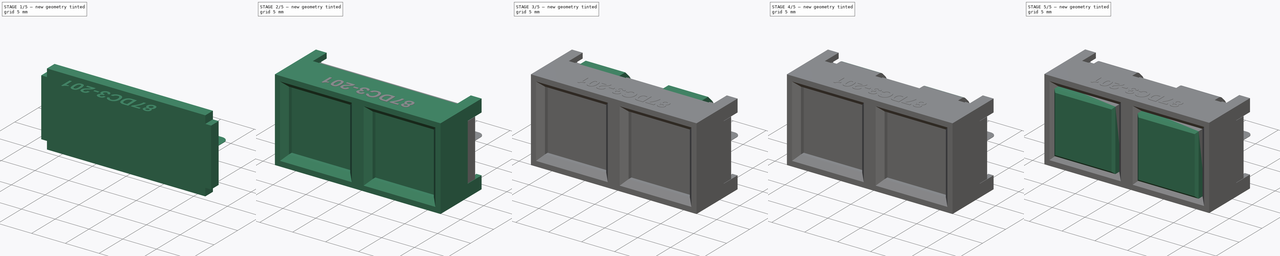
[diagram: build sequence overview — one tinted view per stage of 5, left to right]
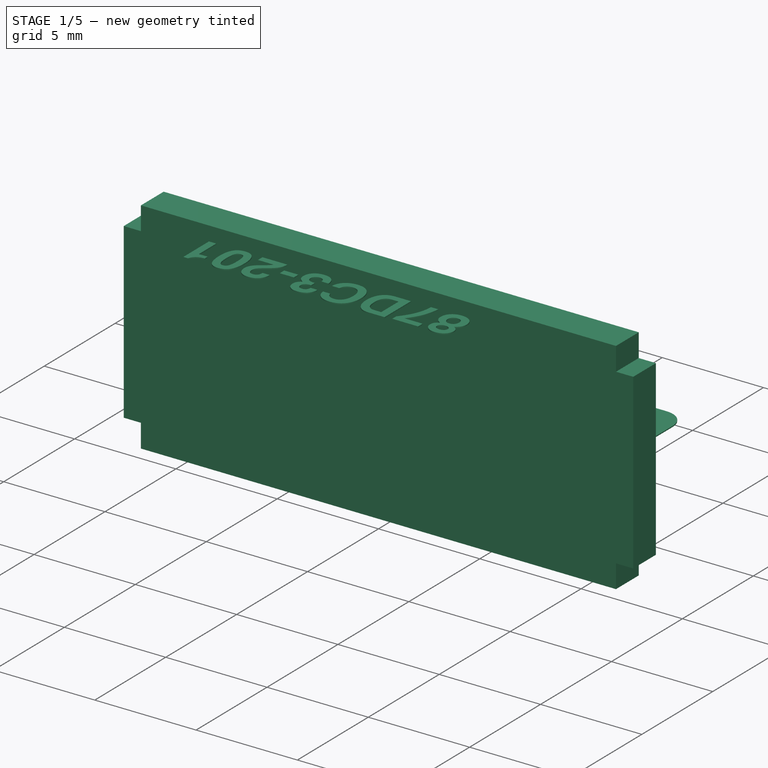
[diagram: stage 1 of 5 — iso view after this stage's code; geometry added in this stage tinted green]
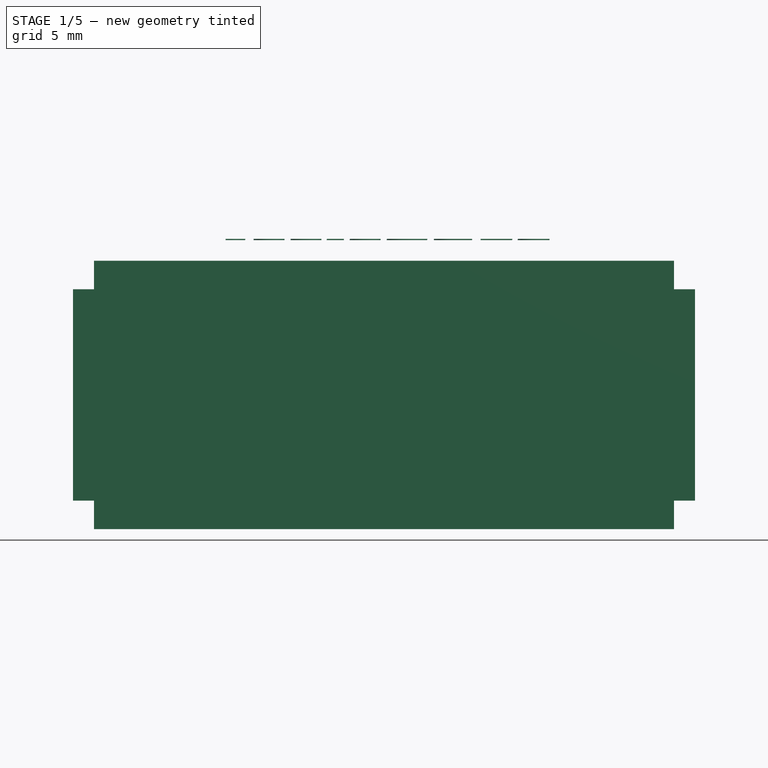
[diagram: stage 1 of 5 — front view after this stage's code; geometry added in this stage tinted green]
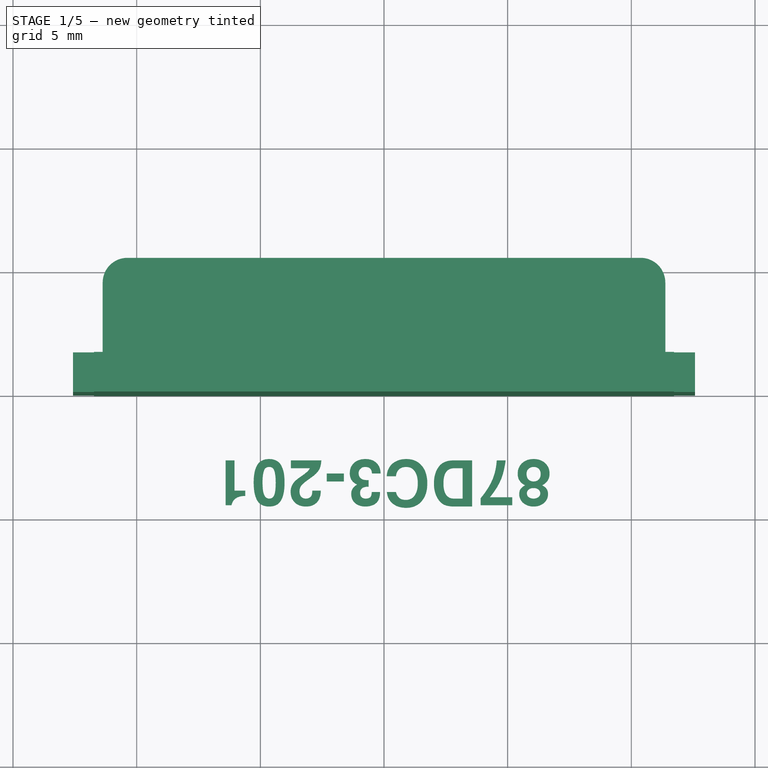
[diagram: stage 1 of 5 — top view after this stage's code; geometry added in this stage tinted green]
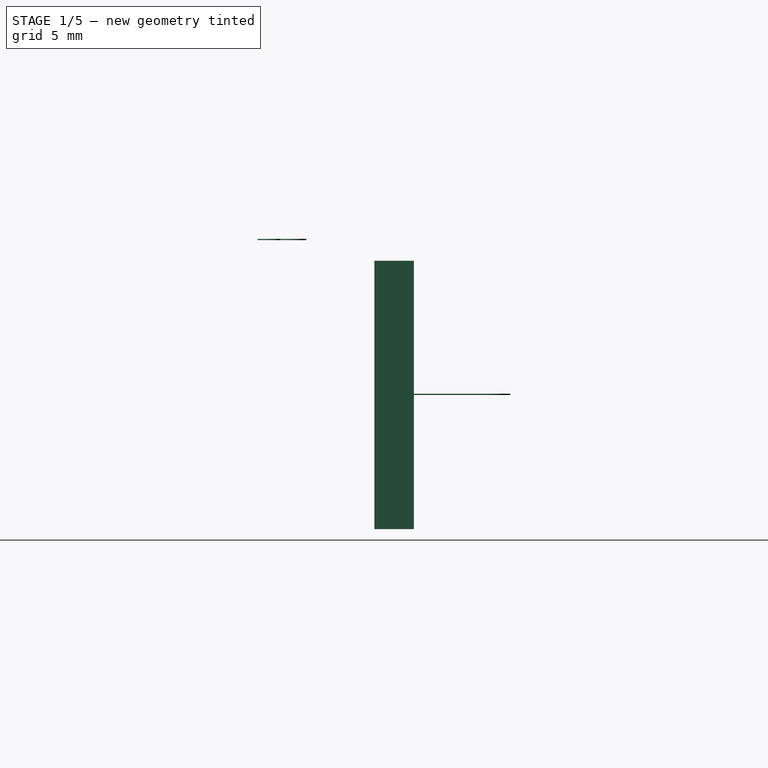
[diagram: stage 1 of 5 — right view after this stage's code; geometry added in this stage tinted green]
FCSTD DOCUMENT  (FreeCAD 0.18.4R)
Label: 87-DC3-201
License: All rights reserved
LicenseURL: http://en.wikipedia.org/wiki/All_rights_reserved
objects: Sketcher::SketchObject×12, PartDesign::Pad×8, PartDesign::Body×5, PartDesign::Pocket×4, PartDesign::Chamfer×4, PartDesign::Fillet×3, Part::Feature×3, PartDesign::Plane×2, App::MeasureDistance×2, Part::Part2DObjectPython×1, Part::Extrusion×1, PartDesign::FeatureBase×1, App::Part×1
note: 56 computed .brp shape members not serialized (recipe doc carries the construction recipe); baked Part::Feature solids carry a one-line shape summary decoded from their .brp

FEATURE [PartDesign::Body] Body  label="87DC3-201Body"
  Group = -> [Sketch,Pad,Sketch001,Pocket,Chamfer,DatumPlane,Sketch006,Pad003,Sketch007,Pad004,Sketch008,Pad005,Fillet,Chamfer003,Fillet001,Fillet002,Sketch009,Pocket001,Sketch010,Pocket002,DatumPlane001,Sketch011,Pocket003]
  Origin = -> Origin
  Tip = -> Pocket003
FEATURE [Sketcher::SketchObject] Sketch012
  MapMode = 5
  Placement = pos=(0,0,0) rot=(1,0,0;1.5708rad)
  Support = -> [XZ_Plane003]
  sketch-geometry (12):
    g0: LineSegment StartX=-11.725 StartY=5.425 StartZ=0 EndX=11.725 EndY=5.425 EndZ=0
    g1: LineSegment StartX=11.725 StartY=5.425 StartZ=0 EndX=11.725 EndY=4.275 EndZ=0
    g2: LineSegment StartX=11.725 StartY=4.275 StartZ=0 EndX=12.575 EndY=4.275 EndZ=0
    g3: LineSegment StartX=12.575 StartY=4.275 StartZ=0 EndX=12.575 EndY=-4.275 EndZ=0
    g4: LineSegment StartX=12.575 StartY=-4.275 StartZ=0 EndX=11.725 EndY=-4.275 EndZ=0
    g5: LineSegment StartX=11.725 StartY=-4.275 StartZ=0 EndX=11.725 EndY=-5.425 EndZ=0
    g6: LineSegment StartX=11.725 StartY=-5.425 StartZ=0 EndX=-11.725 EndY=-5.425 EndZ=0
    g7: LineSegment StartX=-11.725 StartY=-5.425 StartZ=0 EndX=-11.725 EndY=-4.275 EndZ=0
    g8: LineSegment StartX=-11.725 StartY=-4.275 StartZ=0 EndX=-12.575 EndY=-4.275 EndZ=0
    g9: LineSegment StartX=-12.575 StartY=-4.275 StartZ=0 EndX=-12.575 EndY=4.275 EndZ=0
    g10: LineSegment StartX=-12.575 StartY=4.275 StartZ=0 EndX=-11.725 EndY=4.275 EndZ=0
    g11: LineSegment StartX=-11.725 StartY=4.275 StartZ=0 EndX=-11.725 EndY=5.425 EndZ=0
  constraints (34):
    c: Horizontal(g0)
    c: Coincident(g0,g1)
    c: Vertical(g1)
    c: Coincident(g1,g2)
    c: Horizontal(g2)
    c: Coincident(g2,g3)
    c: Vertical(g3)
    c: Coincident(g3,g4)
    c: Horizontal(g4)
    c: Coincident(g4,g5)
    c: Vertical(g5)
    c: Coincident(g5,g6)
    c: Coincident(g6,g7)
    c: Vertical(g7)
    c: Coincident(g7,g8)
    c: Horizontal(g8)
    c: Coincident(g8,g9)
    c: Coincident(g9,g10)
    c: Coincident(g10,g11)
    c: Coincident(g11,g0)
    c: Equal(g11,g1)
    c: Equal(g1,g5)
    c: Equal(g5,g7)
    c: Equal(g2,g4)
    c: Equal(g4,g8)
    c: Equal(g8,g10)
    c: Equal(g3,g9)
    c: Equal(g0,g6)
    c: DistanceX(g9,g2) = 25.15
    c: DistanceY(g5,g0) = 10.85
    c: DistanceX(g10,g10) = 0.85
    c: DistanceY(g11,g11) = 1.15
    c: Symmetric(g6,g6,g-2)
    c: Symmetric(g9,g9,g-1)
FEATURE [PartDesign::Pad] Pad006  label="PCBPad"
  Length = 1.6
  Length2 = 100
  Placement = pos=(0,0,0) rot=(1,0,0;1.5708rad)
  Profile = -> Sketch012
  Reversed = true
  Type = 0
FEATURE [PartDesign::Body] Body003  label="PCBBody"
  Group = -> [Sketch012,Pad006]
  Origin = -> Origin003
  Tip = -> Pad006
FEATURE [Part::Feature] Part__Feature  label="COMMON-Brass_pin-5.75mm"
  Placement = pos=(20.32,0,0) rot=(0,0,1;0rad)
  shape: bbox 0.7 x 5.75 x 0.7 mm, 14 faces (baked)
FEATURE [Part::Feature] Part__Feature001  label="BTN_A-Brass_pin-5.75mm"
  Placement = pos=(12.7,0,0) rot=(0,0,1;0rad)
  shape: bbox 0.7 x 5.75 x 0.7 mm, 14 faces (baked)
FEATURE [Part::Feature] Part__Feature002  label="BTN_B-Brass_pin-5.75mm"
  shape: bbox 0.7 x 5.75 x 0.7 mm, 14 faces (baked)
FEATURE [Sketcher::SketchObject] Sketch016
  MapMode = 5
  Support = -> [XY_Plane004]
  sketch-geometry (8):
    g0: LineSegment StartX=-10.375 StartY=5.5 StartZ=0 EndX=10.375 EndY=5.5 EndZ=0
    g1: LineSegment StartX=11.375 StartY=4.5 StartZ=0 EndX=11.375 EndY=1 EndZ=0
    g2: LineSegment StartX=10.375 StartY=0 StartZ=0 EndX=-10.375 EndY=0 EndZ=0
    g3: LineSegment StartX=-11.375 StartY=1 StartZ=0 EndX=-11.375 EndY=4.5 EndZ=0
    g4: ArcOfCircle CenterX=-10.375 CenterY=4.5 CenterZ=0 NormalX=0 NormalY=0 NormalZ=1 AngleXU=0 Radius=1 StartAngle=1.5708 EndAngle=3.14159
    g5: ArcOfCircle CenterX=10.375 CenterY=4.5 CenterZ=0 NormalX=0 NormalY=0 NormalZ=1 AngleXU=0 Radius=1 StartAngle=0 EndAngle=1.5708
    g6: ArcOfCircle CenterX=10.375 CenterY=1 CenterZ=0 NormalX=0 NormalY=0 NormalZ=1 AngleXU=0 Radius=1 StartAngle=4.71239 EndAngle=6.28319
    g7: ArcOfCircle CenterX=-10.375 CenterY=1 CenterZ=0 NormalX=0 NormalY=0 NormalZ=1 AngleXU=0 Radius=1 StartAngle=3.14159 EndAngle=4.71239
  constraints (19):
    c: Horizontal(g2)
    c: Vertical(g1)
    c: Vertical(g3)
    c: Tangent(g3,g4) = 1.5708
    c: Tangent(g0,g4) = 1.5708
    c: Tangent(g0,g5) = 1.5708
    c: Tangent(g1,g5) = 1.5708
    c: Tangent(g1,g6) = 1.5708
    c: Tangent(g2,g6) = 1.5708
    c: Tangent(g2,g7) = 1.5708
    c: Tangent(g3,g7) = 1.5708
    c: Radius(g4) = 1
    c: Equal(g5,g6)
    c: Equal(g6,g7)
    c: Equal(g7,g4)
    c: Symmetric(g0,g0,g-2)
    c: PointOnObject(g-1,g2)
    c: DistanceY(g-1,g0) = 5.5
    c: DistanceX(g3,g1) = 22.75
FEATURE [PartDesign::Pad] Pad007  label="LabelPad"
  Length = 0.05
  Length2 = 100
  Profile = -> Sketch016
  Type = 0
FEATURE [Part::Part2DObjectPython] ShapeString  label="LabelTextShapeString"  # Draft 2D object (typed FeaturePython)
  AttachmentOffset = pos=(-6.75,2.8,0.01) rot=(0,0,1;0rad)
  FontFile = <path>
  MapMode = 5
  Placement = pos=(-6.75,2.8,0.06) rot=(0,0,1;0rad)
  Size = 1
  String = 87DC3-201
  Support = -> [Pad007]
  Tracking = 0.05
FEATURE [Part::Extrusion] Extrude  label="LabelTextExtrude"
  Base = -> ShapeString
  Dir = (0,0,1)
  DirMode = 2
  FaceMakerClass = Part::FaceMakerBullseye
  LengthFwd = 0.05
  LengthRev = 0
  Placement = pos=(0,0,6.2) rot=(0,0,1;3.14159rad)
  Solid = true
  Symmetric = false
FEATURE [PartDesign::FeatureBase] BaseFeature
  BaseFeature = -> Pad007
FEATURE [PartDesign::Body] Body004  label="LabelBody"
  BaseFeature = -> Pad007
  Group = -> [BaseFeature]
  Origin = -> Origin004
  Placement = pos=(0,0,6.2) rot=(0,0,1;3.14159rad)
  Tip = -> BaseFeature
FEATURE [App::Part] Part  label="Grayhill_87DC3-201"
  Group = -> [Body,Body001,Body002,Body003,Part__Feature,Part__Feature001,Part__Feature002,Body004,Pad007,Sketch016,ShapeString,Extrude]
  Origin = -> Origin005
FEATURE [App::MeasureDistance] Distance  label="Distance: 5,88 mm"
  Distance = 5.8823
  P1 = (-12.575,-5.9,6.225)
  P2 = (-12.575,-0.0177024,6.225)
FEATURE [App::MeasureDistance] Distance001  label="Distance: 1,60 mm"
  Distance = 1.60002
  P1 = (-12.575,5.06506e-07,-4.24888)
  P2 = (-12.575,1.6,-4.2407)
note: 1 file-system path scrubbed to <path> (originals preserved in the JSON sidecar)
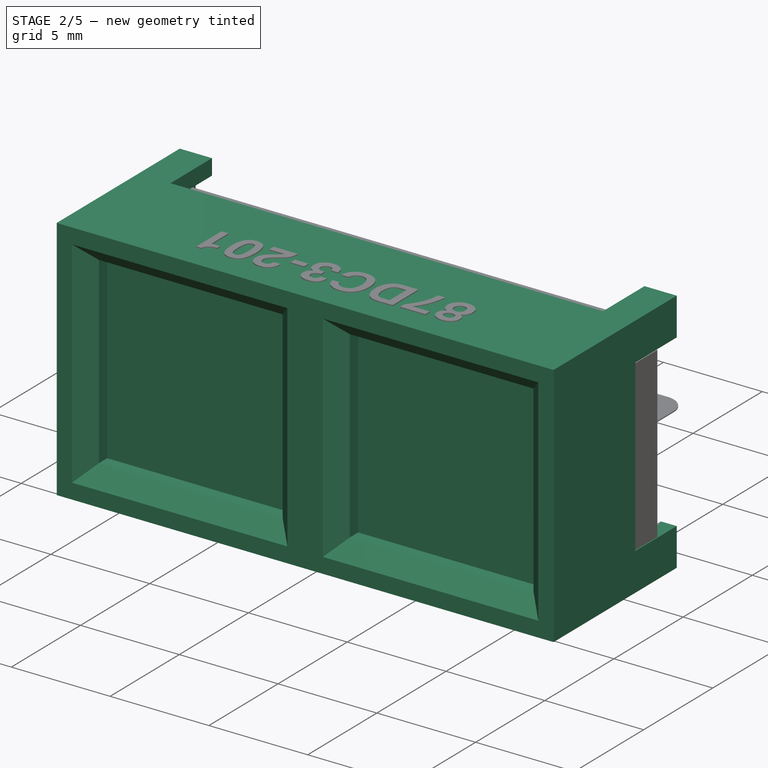
[diagram: stage 2 of 5 — iso view after this stage's code; geometry added in this stage tinted green]
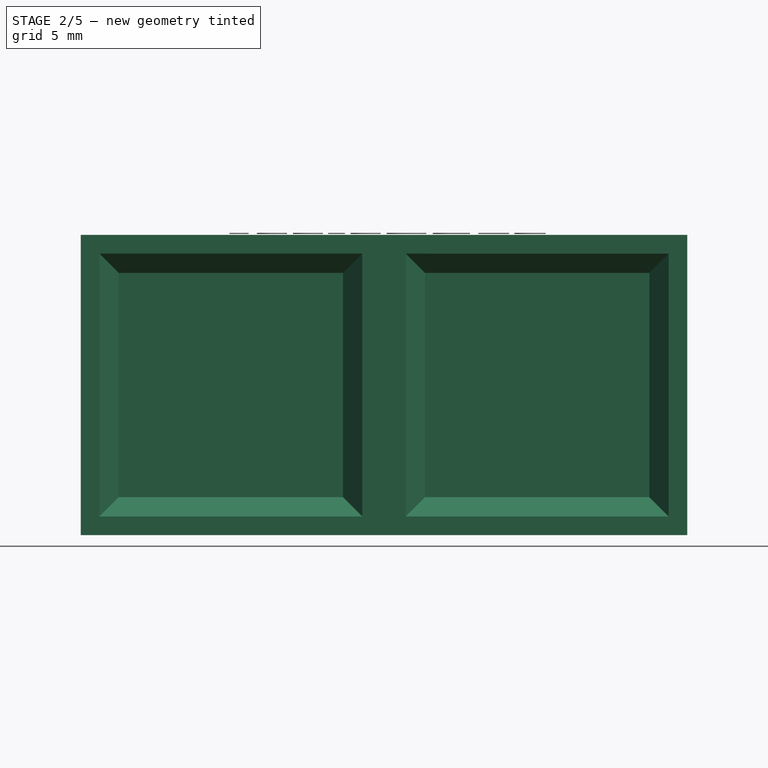
[diagram: stage 2 of 5 — front view after this stage's code; geometry added in this stage tinted green]
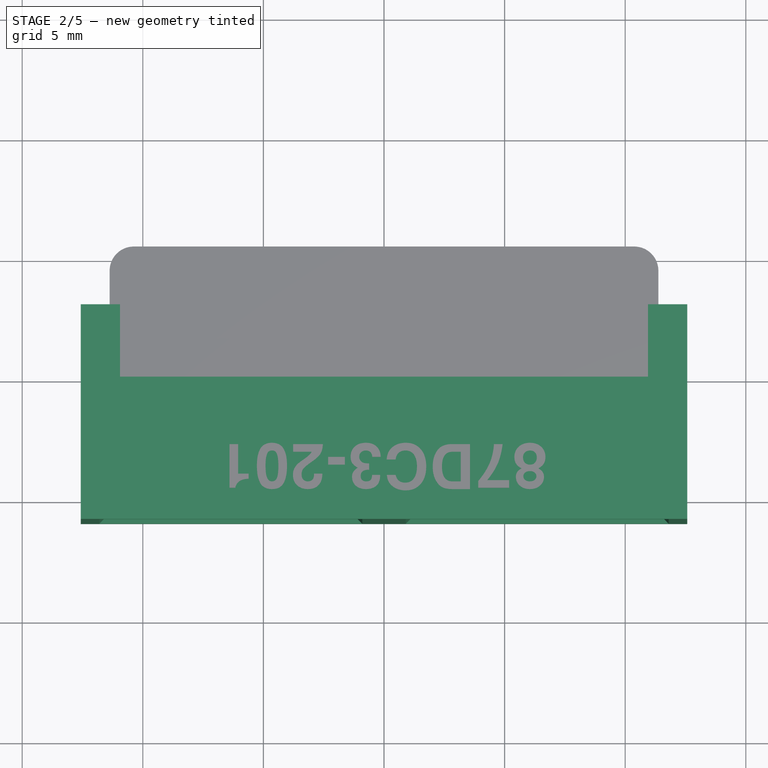
[diagram: stage 2 of 5 — top view after this stage's code; geometry added in this stage tinted green]
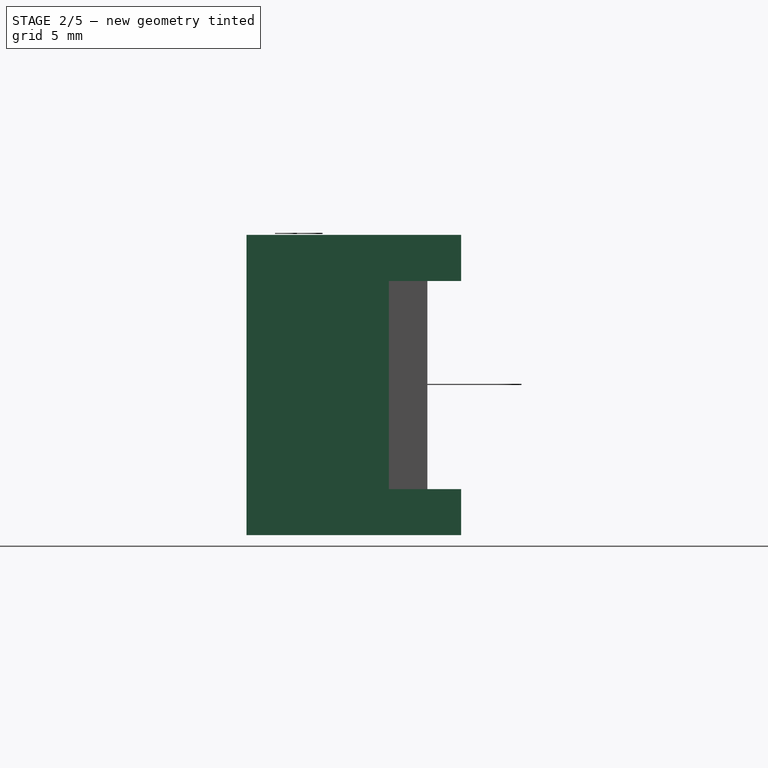
[diagram: stage 2 of 5 — right view after this stage's code; geometry added in this stage tinted green]
FEATURE [Sketcher::SketchObject] Sketch
  MapMode = 5
  Placement = pos=(0,0,0) rot=(1,0,0;1.5708rad)
  Support = -> [XZ_Plane]
  sketch-geometry (4):
    g0: LineSegment StartX=-12.575 StartY=6.225 StartZ=0 EndX=12.575 EndY=6.225 EndZ=0
    g1: LineSegment StartX=12.575 StartY=6.225 StartZ=0 EndX=12.575 EndY=-6.225 EndZ=0
    g2: LineSegment StartX=12.575 StartY=-6.225 StartZ=0 EndX=-12.575 EndY=-6.225 EndZ=0
    g3: LineSegment StartX=-12.575 StartY=-6.225 StartZ=0 EndX=-12.575 EndY=6.225 EndZ=0
  constraints (10):
    c: Coincident(g0,g1)
    c: Coincident(g1,g2)
    c: Coincident(g2,g3)
    c: Coincident(g3,g0)
    c: Horizontal(g2)
    c: Vertical(g1)
    c: DistanceX(g0,g0) = 25.15
    c: DistanceY(g3,g3) = 12.45
    c: Symmetric(g0,g0,g-2)
    c: Symmetric(g2,g0,g-1)
FEATURE [PartDesign::Pad] Pad
  Length = 5.9
  Length2 = 100
  Placement = pos=(0,0,0) rot=(1,0,0;1.5708rad)
  Profile = -> Sketch
  Type = 0
FEATURE [Sketcher::SketchObject] Sketch001
  MapMode = 5
  Placement = pos=(0,-5.9,1.3e-15) rot=(1,0,0;1.5708rad)
  Support = -> [Pad]
  sketch-geometry (11):
    g0: LineSegment StartX=-11 StartY=4.65 StartZ=0 EndX=-1.7 EndY=4.65 EndZ=0
    g1: LineSegment StartX=-1.7 StartY=4.65 StartZ=0 EndX=-1.7 EndY=-4.65 EndZ=0
    g2: LineSegment StartX=-1.7 StartY=-4.65 StartZ=0 EndX=-11 EndY=-4.65 EndZ=0
    g3: LineSegment StartX=-11 StartY=-4.65 StartZ=0 EndX=-11 EndY=4.65 EndZ=0
    g4: LineSegment [constr] StartX=-6.35 StartY=4.65 StartZ=0 EndX=-6.35 EndY=-4.65 EndZ=0
    g5: LineSegment StartX=1.7 StartY=4.65 StartZ=0 EndX=11 EndY=4.65 EndZ=0
    g6: LineSegment StartX=11 StartY=4.65 StartZ=0 EndX=11 EndY=-4.65 EndZ=0
    g7: LineSegment StartX=11 StartY=-4.65 StartZ=0 EndX=1.7 EndY=-4.65 EndZ=0
    g8: LineSegment StartX=1.7 StartY=-4.65 StartZ=0 EndX=1.7 EndY=4.65 EndZ=0
    g9: LineSegment [constr] StartX=6.35 StartY=4.65 StartZ=0 EndX=6.35 EndY=-4.65 EndZ=0
    g10: LineSegment [constr] StartX=-11 StartY=4.65 StartZ=0 EndX=1.7 EndY=4.65 EndZ=0
  constraints (31):
    c: Coincident(g0,g1)
    c: Coincident(g1,g2)
    c: Coincident(g2,g3)
    c: Coincident(g3,g0)
    c: Horizontal(g0)
    c: Horizontal(g2)
    c: Vertical(g1)
    c: DistanceY(g3,g3) = 9.3
    c: DistanceX(g0,g0) = 9.3
    c: Symmetric(g0,g2,g-1)
    c: PointOnObject(g4,g0)
    c: PointOnObject(g4,g2)
    c: Symmetric(g0,g0,g4)
    c: DistanceX(g4,g-1) = 6.35
    c: Coincident(g5,g6)
    c: Coincident(g6,g7)
    c: Coincident(g7,g8)
    c: Coincident(g8,g5)
    c: Horizontal(g5)
    c: Horizontal(g7)
    c: Vertical(g6)
    c: Equal(g3,g8) = 9.3
    c: Equal(g0,g5) = 9.3
    c: PointOnObject(g9,g5)
    c: PointOnObject(g9,g7)
    c: Symmetric(g5,g5,g9)
    c: Coincident(g0,g10)
    c: Coincident(g5,g10)
    c: Distance(g10) = 12.7
    c: Horizontal(g10)
    c: Vertical(g8)
FEATURE [PartDesign::Pocket] Pocket
  BaseFeature = -> Pad
  Length = 1.4
  Length2 = 100
  Placement = pos=(0,0,0) rot=(1,0,0;1.5708rad)
  Profile = -> Sketch001
  Type = 0
FEATURE [PartDesign::Chamfer] Chamfer
  Base = -> Pocket [Edge17,Edge20,Edge19,Edge18,Edge16,Edge13,Edge14,Edge15]
  BaseFeature = -> Pocket
  Placement = pos=(0,0,0) rot=(1,0,0;1.5708rad)
  Size = 0.8
FEATURE [PartDesign::Body] Body002  label="ButtonRightBody"
  Group = -> [Sketch004,Pad002,Chamfer002]
  Origin = -> Origin002
  Tip = -> Chamfer002
FEATURE [Sketcher::SketchObject] Sketch006
  ExternalGeometry = -> [Chamfer]
  MapMode = 5
  Placement = pos=(0,0,0) rot=(-1,0,0;1.5708rad)
  Support = -> [Chamfer]
  sketch-geometry (24):
    g0: LineSegment StartX=12.575 StartY=-4.315 StartZ=0 EndX=12.575 EndY=-6.225 EndZ=0
    g1: LineSegment StartX=12.575 StartY=-6.225 StartZ=0 EndX=10.945 EndY=-6.225 EndZ=0
    g2: LineSegment StartX=10.945 StartY=-6.225 StartZ=0 EndX=10.945 EndY=-5.425 EndZ=0
    g3: LineSegment StartX=10.945 StartY=-5.425 StartZ=0 EndX=11.775 EndY=-5.425 EndZ=0
    g4: LineSegment StartX=11.775 StartY=-5.425 StartZ=0 EndX=11.775 EndY=-4.315 EndZ=0
    g5: LineSegment StartX=11.775 StartY=-4.315 StartZ=0 EndX=12.575 EndY=-4.315 EndZ=0
    g6: LineSegment StartX=-10.945 StartY=-6.225 StartZ=0 EndX=-12.575 EndY=-6.225 EndZ=0
    g7: LineSegment StartX=-12.575 StartY=-6.225 StartZ=0 EndX=-12.575 EndY=-4.315 EndZ=0
    g8: LineSegment StartX=-12.575 StartY=-4.315 StartZ=0 EndX=-11.775 EndY=-4.315 EndZ=0
    g9: LineSegment StartX=-11.775 StartY=-4.315 StartZ=0 EndX=-11.775 EndY=-5.425 EndZ=0
    g10: LineSegment StartX=-11.775 StartY=-5.425 StartZ=0 EndX=-10.945 EndY=-5.425 EndZ=0
    g11: LineSegment StartX=-10.945 StartY=-5.425 StartZ=0 EndX=-10.945 EndY=-6.225 EndZ=0
    g12: LineSegment StartX=12.575 StartY=4.315 StartZ=0 EndX=12.575 EndY=6.225 EndZ=0
    g13: LineSegment StartX=12.575 StartY=6.225 StartZ=0 EndX=10.945 EndY=6.225 EndZ=0
    g14: LineSegment StartX=10.945 StartY=6.225 StartZ=0 EndX=10.945 EndY=5.425 EndZ=0
    g15: LineSegment StartX=10.945 StartY=5.425 StartZ=0 EndX=11.775 EndY=5.425 EndZ=0
    g16: LineSegment StartX=11.775 StartY=5.425 StartZ=0 EndX=11.775 EndY=4.315 EndZ=0
    g17: LineSegment StartX=11.775 StartY=4.315 StartZ=0 EndX=12.575 EndY=4.315 EndZ=0
    g18: LineSegment StartX=-11.775 StartY=4.315 StartZ=0 EndX=-11.775 EndY=5.425 EndZ=0
    g19: LineSegment StartX=-11.775 StartY=5.425 StartZ=0 EndX=-10.945 EndY=5.425 EndZ=0
    g20: LineSegment StartX=-10.945 StartY=5.425 StartZ=0 EndX=-10.945 EndY=6.225 EndZ=0
    g21: LineSegment StartX=-10.945 StartY=6.225 StartZ=0 EndX=-12.575 EndY=6.225 EndZ=0
    g22: LineSegment StartX=-12.575 StartY=6.225 StartZ=0 EndX=-12.575 EndY=4.315 EndZ=0
    g23: LineSegment StartX=-12.575 StartY=4.315 StartZ=0 EndX=-11.775 EndY=4.315 EndZ=0
  constraints (68):
    c: Vertical(g0)
    c: Coincident(g0,g1)
    c: Horizontal(g1)
    c: Coincident(g1,g2)
    c: Vertical(g2)
    c: Coincident(g2,g3)
    c: Horizontal(g3)
    c: Coincident(g3,g4)
    c: Vertical(g4)
    c: Coincident(g4,g5)
    c: Coincident(g5,g0)
    c: Horizontal(g5)
    c: DistanceX(g1,g1) = 1.63
    c: DistanceY(g0,g0) = 1.91
    c: DistanceY(g2,g2) = 0.8
    c: DistanceX(g5,g5) = 0.8
    c: Horizontal(g6)
    c: Coincident(g6,g7)
    c: Vertical(g7)
    c: Coincident(g7,g8)
    c: Horizontal(g8)
    c: Coincident(g8,g9)
    c: Vertical(g9)
    c: Coincident(g9,g10)
    c: Horizontal(g10)
    c: Coincident(g10,g11)
    c: Coincident(g11,g6)
    c: Vertical(g11)
    c: Equal(g6,g1)
    c: Equal(g7,g0)
    c: Equal(g8,g5)
    c: Equal(g11,g2)
    c: Vertical(g12)
    c: Coincident(g12,g13)
    c: Horizontal(g13)
    c: Coincident(g13,g14)
    c: Vertical(g14)
    c: Coincident(g14,g15)
    c: Horizontal(g15)
    c: Coincident(g15,g16)
    c: Vertical(g16)
    c: Coincident(g16,g17)
    c: Horizontal(g17)
    c: Vertical(g18)
    c: Coincident(g18,g19)
    c: Horizontal(g19)
    c: Coincident(g19,g20)
    c: Vertical(g20)
    c: Coincident(g20,g21)
    c: Horizontal(g21)
    c: Coincident(g21,g22)
    c: Vertical(g22)
    c: Coincident(g22,g23)
    c: Coincident(g23,g18)
    c: Horizontal(g23)
    c: Equal(g23,g8)
    c: Equal(g17,g5)
    c: Equal(g14,g20)
    c: Equal(g14,g2)
    c: Equal(g12,g22)
    c: Equal(g21,g13)
    c: Equal(g12,g0)
    c: Equal(g13,g1)
    c: Coincident(g-3,g0)
    c: Coincident(g-4,g6)
    c: Coincident(g-5,g12)
    c: Coincident(g-6,g21)
    c: Coincident(g17,g12)
FEATURE [PartDesign::Pad] Pad003
  BaseFeature = -> Chamfer
  Length = 3
  Length2 = 100
  Placement = pos=(0,0,0) rot=(1,0,0;1.5708rad)
  Profile = -> Sketch006
  Type = 0
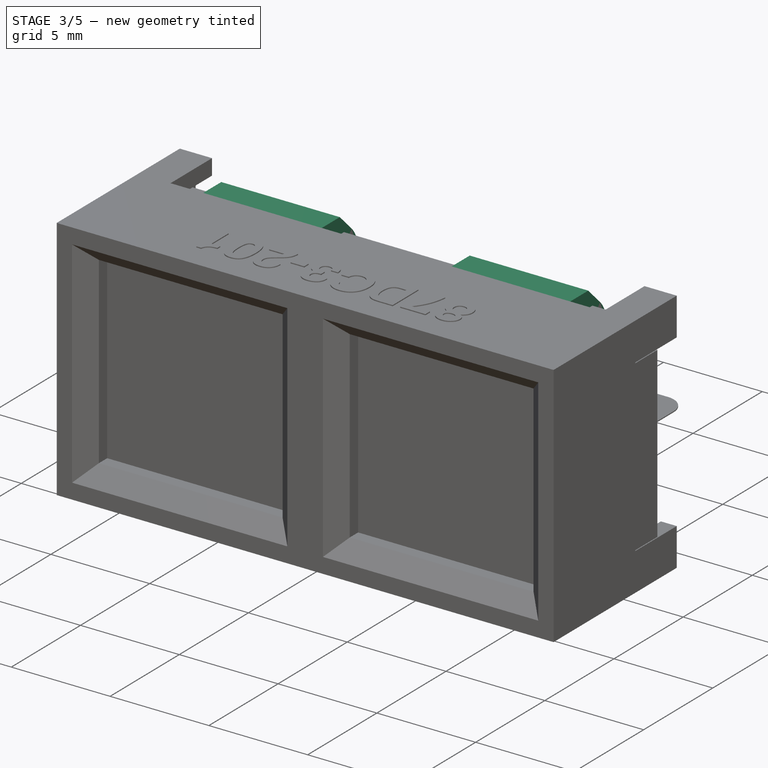
[diagram: stage 3 of 5 — iso view after this stage's code; geometry added in this stage tinted green]
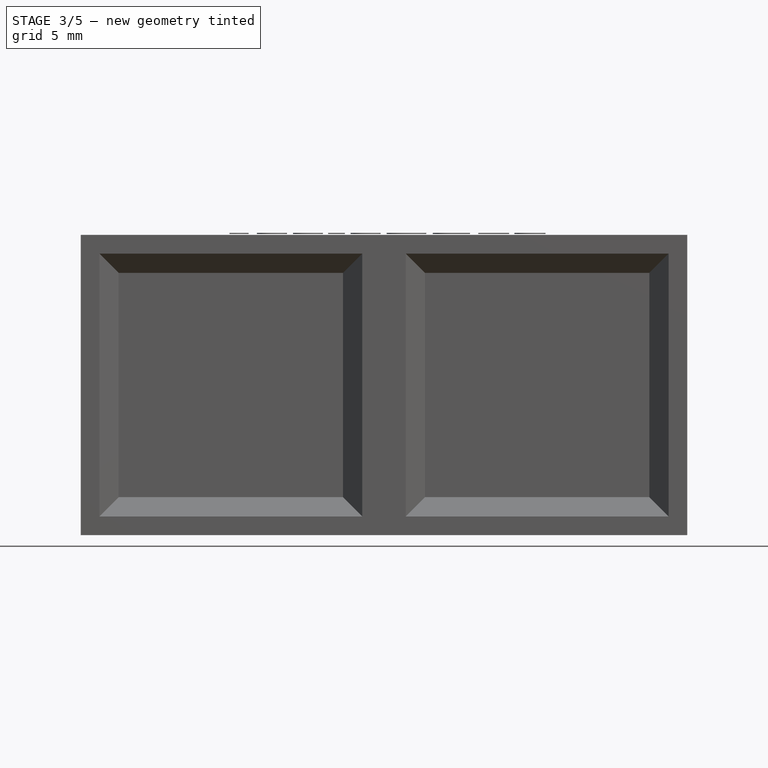
[diagram: stage 3 of 5 — front view after this stage's code; geometry added in this stage tinted green]
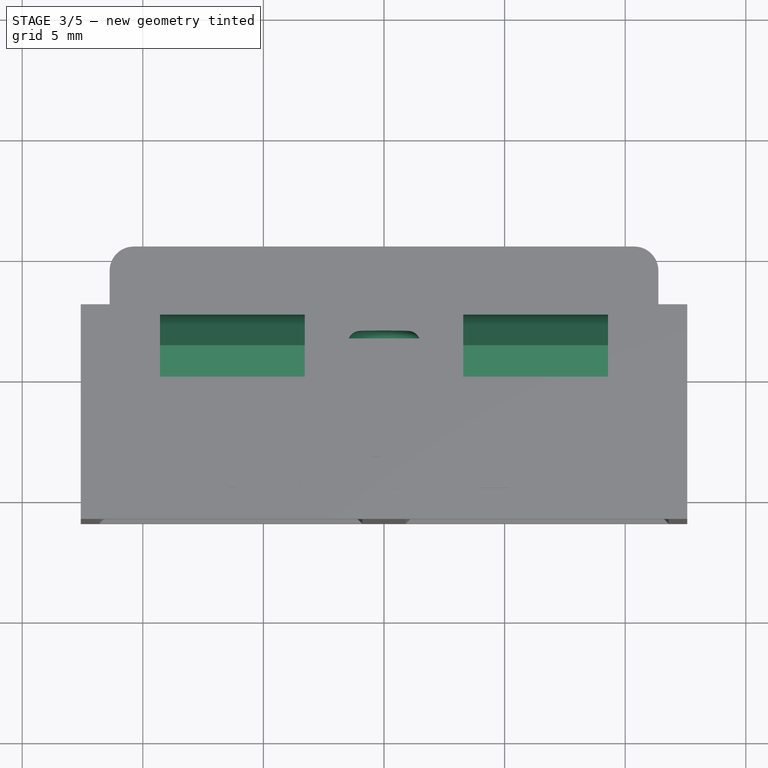
[diagram: stage 3 of 5 — top view after this stage's code; geometry added in this stage tinted green]
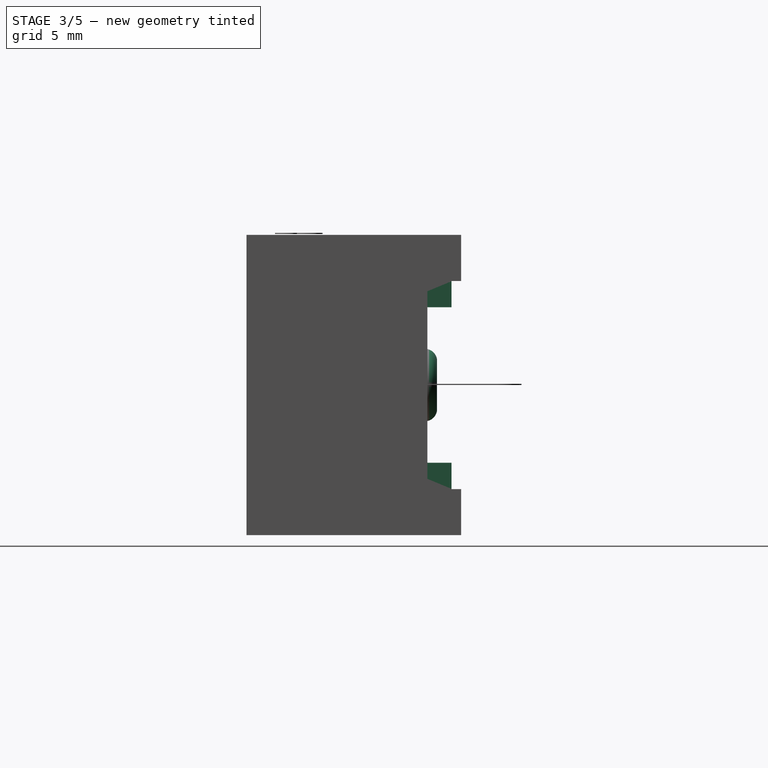
[diagram: stage 3 of 5 — right view after this stage's code; geometry added in this stage tinted green]
FEATURE [Sketcher::SketchObject] Sketch007
  ExternalGeometry = -> [Chamfer]
  MapMode = 5
  Placement = pos=(0,0,0) rot=(-1,0,0;1.5708rad)
  Support = -> [Pad003]
  sketch-geometry (24):
    g0: LineSegment StartX=-9.2875 StartY=6.225 StartZ=0 EndX=-3.2875 EndY=6.225 EndZ=0
    g1: LineSegment StartX=-3.2875 StartY=6.225 StartZ=0 EndX=-3.2875 EndY=3.225 EndZ=0
    g2: LineSegment StartX=-3.2875 StartY=3.225 StartZ=0 EndX=-9.2875 EndY=3.225 EndZ=0
    g3: LineSegment StartX=-9.2875 StartY=3.225 StartZ=0 EndX=-9.2875 EndY=6.225 EndZ=0
    g4: LineSegment [constr] StartX=-12.575 StartY=6.225 StartZ=0 EndX=12.575 EndY=6.225 EndZ=0
    g5: LineSegment [constr] StartX=-12.575 StartY=-6.225 StartZ=0 EndX=12.575 EndY=-6.225 EndZ=0
    g6: GeomPoint X=1e-16 Y=6.225 Z=0
    g7: GeomPoint X=4e-16 Y=-6.225 Z=0
    g8: GeomPoint X=-6.2875 Y=-6.225 Z=0
    g9: GeomPoint X=6.2875 Y=-6.225 Z=0
    g10: GeomPoint X=-6.2875 Y=6.225 Z=0
    g11: GeomPoint X=6.2875 Y=6.225 Z=0
    g12: LineSegment StartX=3.2875 StartY=6.225 StartZ=0 EndX=9.2875 EndY=6.225 EndZ=0
    g13: LineSegment StartX=9.2875 StartY=6.225 StartZ=0 EndX=9.2875 EndY=3.225 EndZ=0
    g14: LineSegment StartX=9.2875 StartY=3.225 StartZ=0 EndX=3.2875 EndY=3.225 EndZ=0
    g15: LineSegment StartX=3.2875 StartY=3.225 StartZ=0 EndX=3.2875 EndY=6.225 EndZ=0
    g16: LineSegment StartX=-9.2875 StartY=-3.225 StartZ=0 EndX=-3.2875 EndY=-3.225 EndZ=0
    g17: LineSegment StartX=-3.2875 StartY=-3.225 StartZ=0 EndX=-3.2875 EndY=-6.225 EndZ=0
    g18: LineSegment StartX=-3.2875 StartY=-6.225 StartZ=0 EndX=-9.2875 EndY=-6.225 EndZ=0
    g19: LineSegment StartX=-9.2875 StartY=-6.225 StartZ=0 EndX=-9.2875 EndY=-3.225 EndZ=0
    g20: LineSegment StartX=3.2875 StartY=-3.225 StartZ=0 EndX=9.2875 EndY=-3.225 EndZ=0
    g21: LineSegment StartX=9.2875 StartY=-3.225 StartZ=0 EndX=9.2875 EndY=-6.225 EndZ=0
    g22: LineSegment StartX=9.2875 StartY=-6.225 StartZ=0 EndX=3.2875 EndY=-6.225 EndZ=0
    g23: LineSegment StartX=3.2875 StartY=-6.225 StartZ=0 EndX=3.2875 EndY=-3.225 EndZ=0
  constraints (54):
    c: Coincident(g0,g1)
    c: Coincident(g1,g2)
    c: Coincident(g2,g3)
    c: Coincident(g3,g0)
    c: Horizontal(g0)
    c: Horizontal(g2)
    c: Vertical(g1)
    c: Vertical(g3)
    c: DistanceX(g0,g0) = 6
    c: DistanceY(g1,g1) = 3
    c: Coincident(g4,g-3)
    c: Coincident(g4,g-4)
    c: Coincident(g5,g-6)
    c: Coincident(g5,g-5)
    c: Symmetric(g4,g4,g6)
    c: Symmetric(g5,g5,g7)
    c: Symmetric(g7,g5,g9)
    c: Symmetric(g5,g7,g8)
    c: Symmetric(g4,g6,g10)
    c: Symmetric(g6,g4,g11)
    c: Symmetric(g0,g0,g10)
    c: Coincident(g12,g13)
    c: Coincident(g13,g14)
    c: Coincident(g14,g15)
    c: Coincident(g15,g12)
    c: Horizontal(g12)
    c: Horizontal(g14)
    c: Vertical(g13)
    c: Vertical(g15)
    c: Coincident(g16,g17)
    c: Coincident(g17,g18)
    c: Coincident(g18,g19)
    c: Coincident(g19,g16)
    c: Horizontal(g16)
    c: Horizontal(g18)
    c: Vertical(g17)
    c: Vertical(g19)
    c: Coincident(g20,g21)
    c: Coincident(g21,g22)
    c: Coincident(g22,g23)
    c: Coincident(g23,g20)
    c: Horizontal(g20)
    c: Horizontal(g22)
    c: Vertical(g21)
    c: Vertical(g23)
    c: Equal(g12,g0)
    c: Equal(g20,g16)
    c: Equal(g16,g0)
    c: Equal(g17,g21)
    c: Equal(g21,g13)
    c: Equal(g13,g1)
    c: Symmetric(g18,g17,g8)
    c: Symmetric(g22,g21,g9)
    c: Symmetric(g12,g12,g11)
FEATURE [PartDesign::Pad] Pad004
  BaseFeature = -> Pad003
  Length = 2.6
  Length2 = 100
  Placement = pos=(0,0,0) rot=(1,0,0;1.5708rad)
  Profile = -> Sketch007
  Type = 0
FEATURE [Sketcher::SketchObject] Sketch008
  MapMode = 5
  Placement = pos=(0,0,0) rot=(-1,0,0;1.5708rad)
  Support = -> [Pad004]
  sketch-geometry (1):
    g0: Circle CenterX=0 CenterY=0 CenterZ=0 NormalX=0 NormalY=0 NormalZ=1 AngleXU=0 Radius=1.5
  constraints (2):
    c: Coincident(g0,g-1)
    c: Diameter(g0) = 3
FEATURE [PartDesign::Pad] Pad005
  BaseFeature = -> Pad004
  Length = 2
  Length2 = 100
  Placement = pos=(0,0,0) rot=(1,0,0;1.5708rad)
  Profile = -> Sketch008
  Type = 0
FEATURE [PartDesign::Fillet] Fillet
  Base = -> Pad005 [Edge179]
  BaseFeature = -> Pad005
  Placement = pos=(0,0,0) rot=(1,0,0;1.5708rad)
  Radius = 0.5
FEATURE [PartDesign::Chamfer] Chamfer003
  Base = -> Fillet [Edge146,Edge147,Edge130,Edge129]
  BaseFeature = -> Fillet
  Placement = pos=(0,0,0) rot=(1,0,0;1.5708rad)
  Size = 1.3
FEATURE [PartDesign::Fillet] Fillet001
  Base = -> Chamfer003 [Edge10,Edge151,Edge156,Edge158]
  BaseFeature = -> Chamfer003
  Placement = pos=(0,0,0) rot=(1,0,0;1.5708rad)
  Radius = 1.5
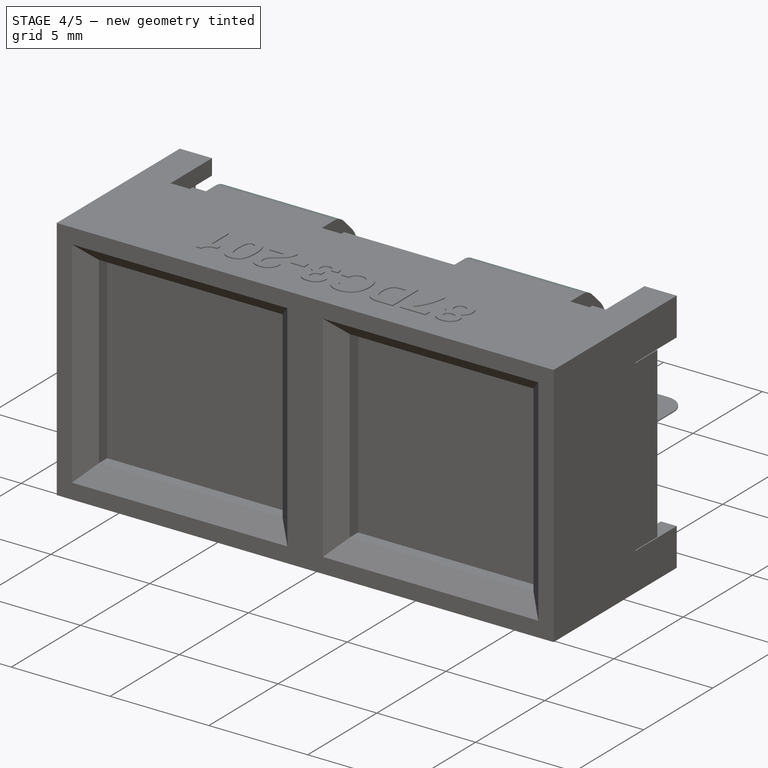
[diagram: stage 4 of 5 — iso view after this stage's code; geometry added in this stage tinted green]
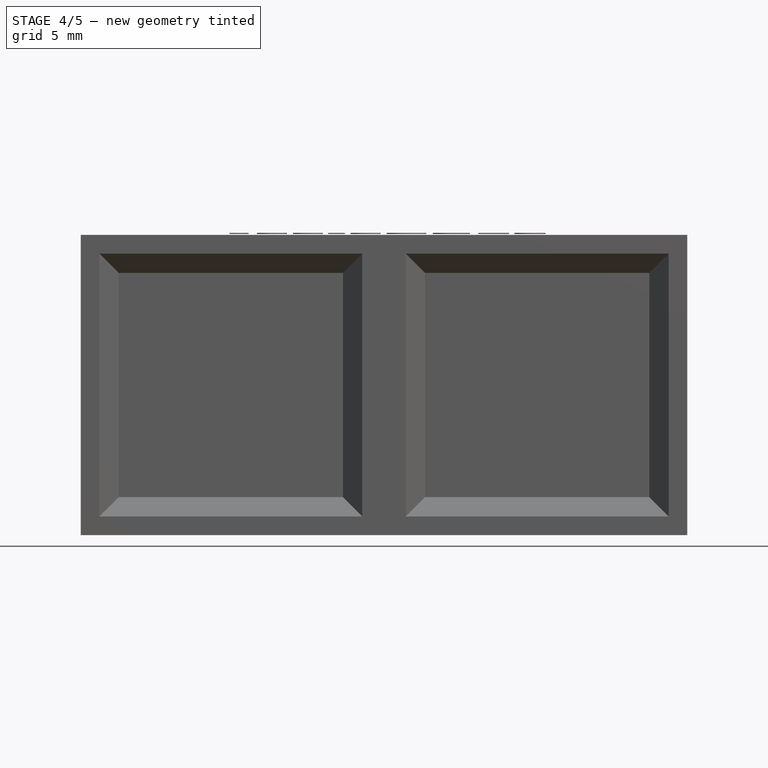
[diagram: stage 4 of 5 — front view after this stage's code; geometry added in this stage tinted green]
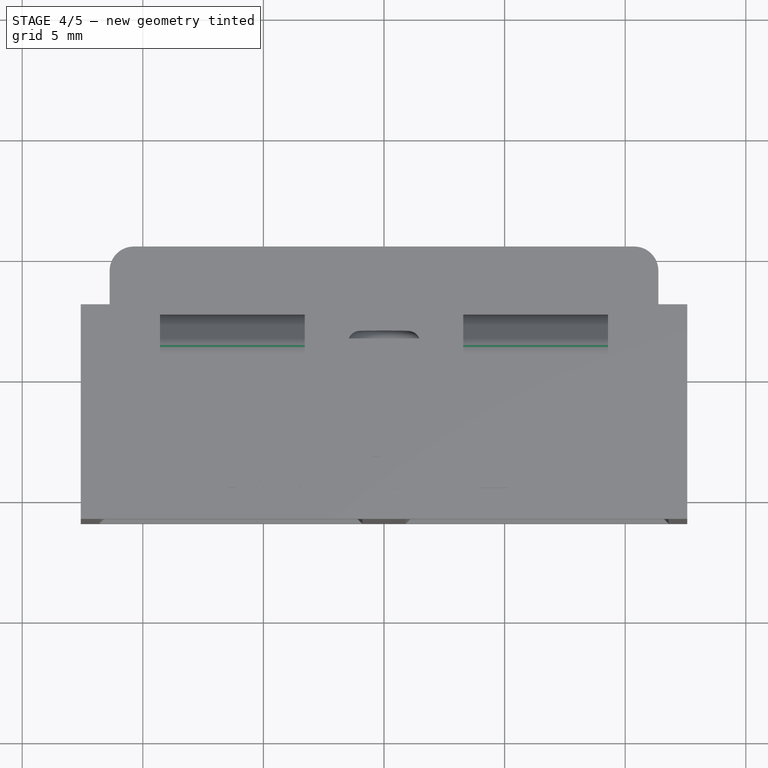
[diagram: stage 4 of 5 — top view after this stage's code; geometry added in this stage tinted green]
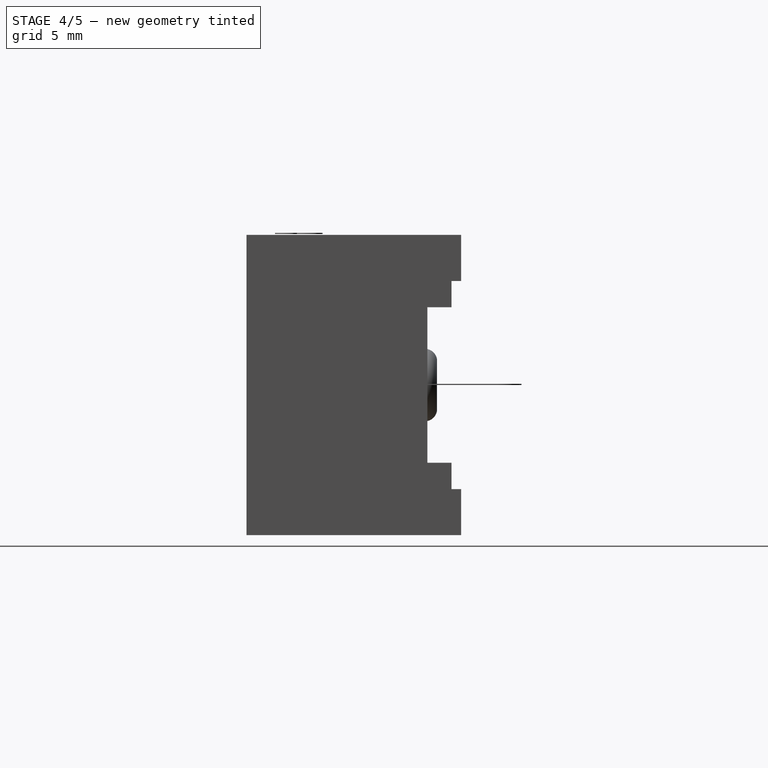
[diagram: stage 4 of 5 — right view after this stage's code; geometry added in this stage tinted green]
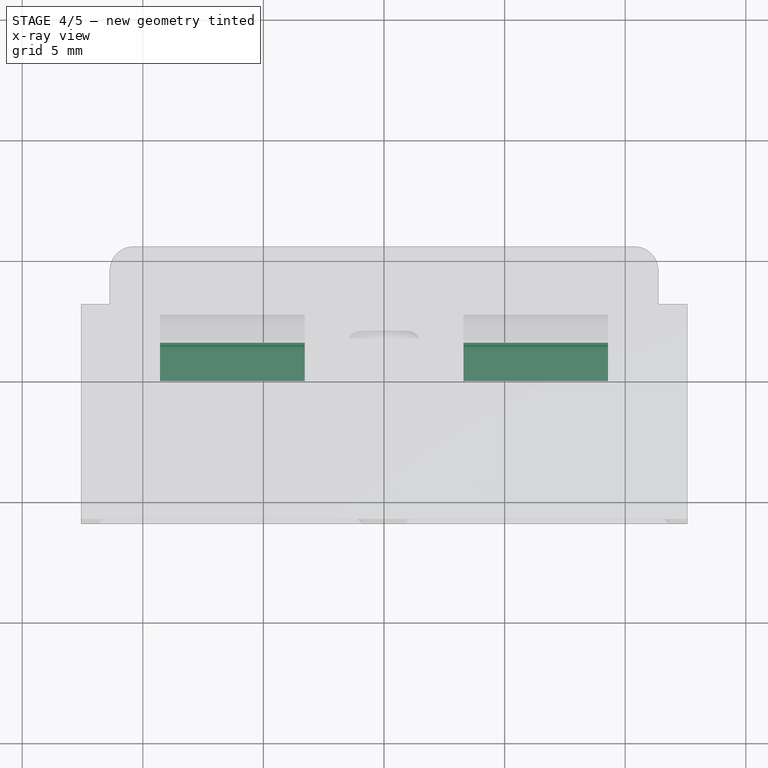
[diagram: stage 4 of 5 — x-ray composite at the top view; earlier geometry ghosted, this stage's added geometry solid]
FEATURE [PartDesign::Fillet] Fillet002
  Base = -> Fillet001 [Edge164,Edge165,Edge145,Edge9]
  BaseFeature = -> Fillet001
  Placement = pos=(0,0,0) rot=(1,0,0;1.5708rad)
  Radius = 1
FEATURE [Sketcher::SketchObject] Sketch009
  ExternalGeometry = -> [Fillet002]
  MapMode = 5
  Placement = pos=(0,5.2e-15,3.225) rot=(1,0,0;3.14159rad)
  Support = -> [Fillet002]
  sketch-geometry (4):
    g0: LineSegment StartX=-9.2875 StartY=2e-16 StartZ=0 EndX=-3.2875 EndY=2e-16 EndZ=0
    g1: LineSegment StartX=-3.2875 StartY=2e-16 StartZ=0 EndX=-3.2875 EndY=-1.6 EndZ=0
    g2: LineSegment StartX=-3.2875 StartY=-1.6 StartZ=0 EndX=-9.2875 EndY=-1.6 EndZ=0
    g3: LineSegment StartX=-9.2875 StartY=-1.6 StartZ=0 EndX=-9.2875 EndY=2e-16 EndZ=0
  constraints (10):
    c: Coincident(g0,g1)
    c: Coincident(g1,g2)
    c: Coincident(g2,g3)
    c: Coincident(g3,g0)
    c: Vertical(g1)
    c: Coincident(g0,g-3)
    c: DistanceY(g1,g1) = 1.6
    c: Equal(g3,g1)
    c: Equal(g2,g0)
    c: Coincident(g0,g-4)
FEATURE [PartDesign::Pocket] Pocket001
  BaseFeature = -> Fillet002
  Length = 1.8
  Length2 = 100
  Placement = pos=(0,0,0) rot=(1,0,0;1.5708rad)
  Profile = -> Sketch009
  Type = 0
FEATURE [Sketcher::SketchObject] Sketch010
  ExternalGeometry = -> [Pocket001]
  MapMode = 5
  Placement = pos=(0,5.2e-15,3.225) rot=(1,0,0;3.14159rad)
  Support = -> [Pocket001]
  sketch-geometry (4):
    g0: LineSegment StartX=3.2875 StartY=0 StartZ=0 EndX=9.2875 EndY=2e-16 EndZ=0
    g1: LineSegment StartX=9.2875 StartY=2e-16 StartZ=0 EndX=9.2875 EndY=-1.6 EndZ=0
    g2: LineSegment StartX=9.2875 StartY=-1.6 StartZ=0 EndX=3.2875 EndY=-1.6 EndZ=0
    g3: LineSegment StartX=3.2875 StartY=-1.6 StartZ=0 EndX=3.2875 EndY=0 EndZ=0
  constraints (10):
    c: Coincident(g0,g1)
    c: Coincident(g1,g2)
    c: Coincident(g2,g3)
    c: Coincident(g3,g0)
    c: Horizontal(g2)
    c: Vertical(g1)
    c: Vertical(g3)
    c: Coincident(g0,g-3)
    c: Coincident(g0,g-4)
    c: DistanceY(g1,g1) = 1.6
FEATURE [PartDesign::Pocket] Pocket002
  BaseFeature = -> Pocket001
  Length = 1.8
  Length2 = 100
  Placement = pos=(0,0,0) rot=(1,0,0;1.5708rad)
  Profile = -> Sketch010
  Type = 0
FEATURE [PartDesign::Plane] DatumPlane001
  Length = 24.4855
  MapMode = 45
  Placement = pos=(-1.37e-14,1.3,-3.225) rot=(0,0,1;1.5708rad)
  ResizeMode = 0
  Support = -> [Pocket002]
  Width = 29.6355
FEATURE [Sketcher::SketchObject] Sketch011
  ExternalGeometry = -> [Pocket002]
  MapMode = 5
  Placement = pos=(-1.37e-14,1.3,-3.225) rot=(0,0,1;1.5708rad)
  Support = -> [DatumPlane001]
  sketch-geometry (8):
    g0: LineSegment StartX=-1.3 StartY=9.2875 StartZ=0 EndX=0.3 EndY=9.2875 EndZ=0
    g1: LineSegment StartX=0.3 StartY=9.2875 StartZ=0 EndX=0.3 EndY=3.2875 EndZ=0
    g2: LineSegment StartX=0.3 StartY=3.2875 StartZ=0 EndX=-1.3 EndY=3.2875 EndZ=0
    g3: LineSegment StartX=-1.3 StartY=3.2875 StartZ=0 EndX=-1.3 EndY=9.2875 EndZ=0
    g4: LineSegment StartX=-1.3 StartY=-3.2875 StartZ=0 EndX=0.3 EndY=-3.2875 EndZ=0
    g5: LineSegment StartX=0.3 StartY=-3.2875 StartZ=0 EndX=0.3 EndY=-9.2875 EndZ=0
    g6: LineSegment StartX=0.3 StartY=-9.2875 StartZ=0 EndX=-1.3 EndY=-9.2875 EndZ=0
    g7: LineSegment StartX=-1.3 StartY=-9.2875 StartZ=0 EndX=-1.3 EndY=-3.2875 EndZ=0
  constraints (20):
    c: Coincident(g0,g1)
    c: Coincident(g1,g2)
    c: Coincident(g2,g3)
    c: Coincident(g3,g0)
    c: Horizontal(g0)
    c: Horizontal(g2)
    c: Vertical(g1)
    c: Coincident(g0,g-3)
    c: Coincident(g4,g5)
    c: Coincident(g5,g6)
    c: Coincident(g6,g7)
    c: Coincident(g7,g4)
    c: Horizontal(g4)
    c: Horizontal(g6)
    c: Vertical(g5)
    c: Coincident(g4,g-5)
    c: Coincident(g2,g-4)
    c: Coincident(g6,g-6)
    c: DistanceX(g4,g4) = 1.6
    c: Equal(g4,g2)
FEATURE [PartDesign::Pocket] Pocket003  label="BodyFinal_pad"
  BaseFeature = -> Pocket002
  Length = 1.8
  Length2 = 100
  Placement = pos=(0,0,0) rot=(1,0,0;1.5708rad)
  Profile = -> Sketch011
  Type = 0
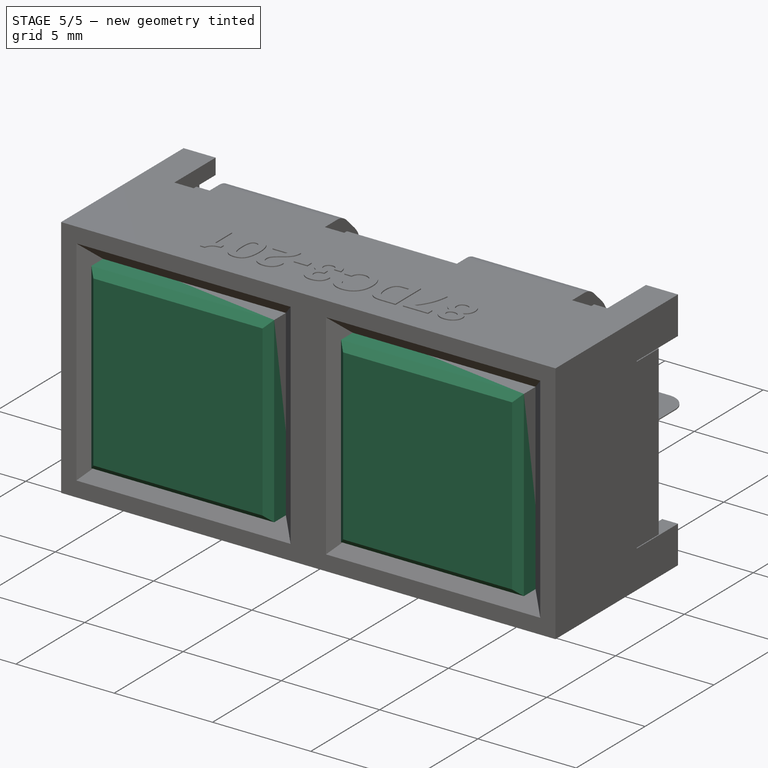
[diagram: stage 5 of 5 — iso view after this stage's code; geometry added in this stage tinted green]
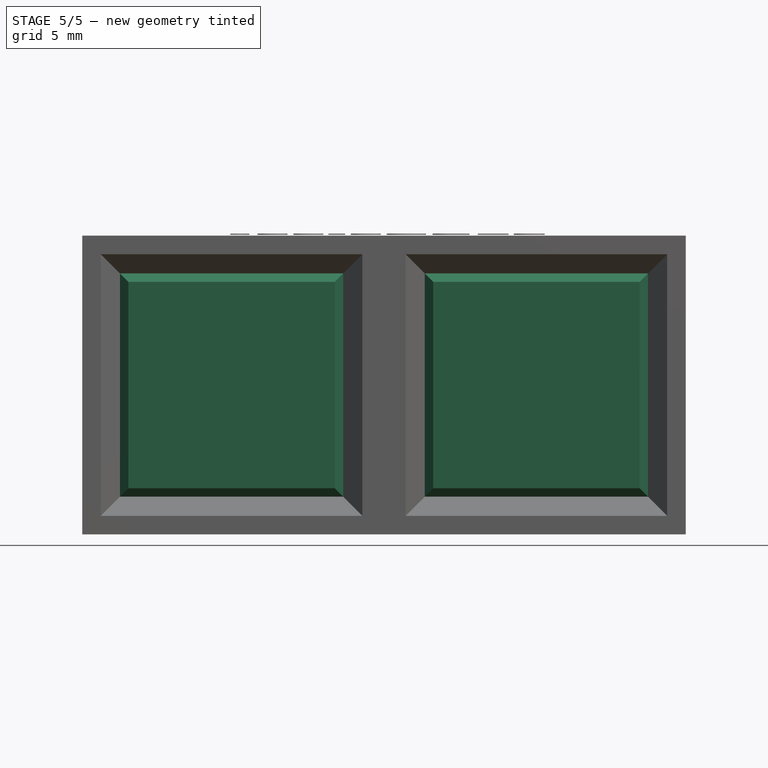
[diagram: stage 5 of 5 — front view after this stage's code; geometry added in this stage tinted green]
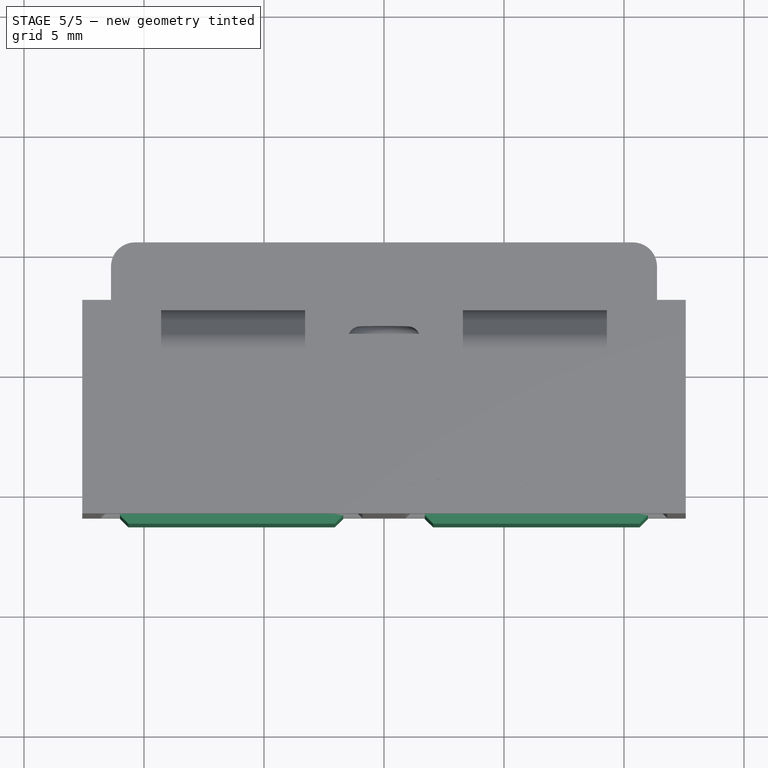
[diagram: stage 5 of 5 — top view after this stage's code; geometry added in this stage tinted green]
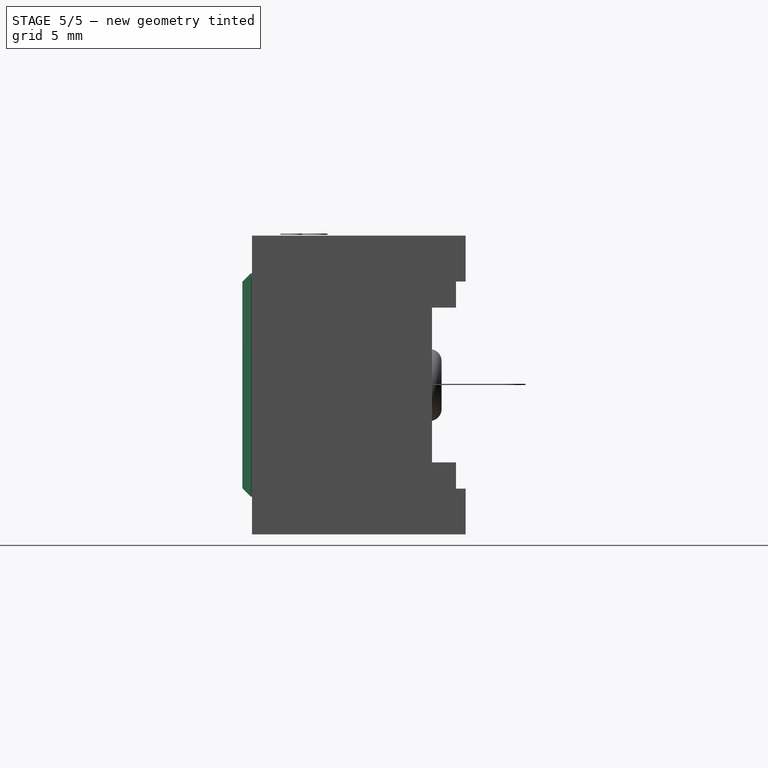
[diagram: stage 5 of 5 — right view after this stage's code; geometry added in this stage tinted green]
FEATURE [PartDesign::Plane] DatumPlane
  Length = 29.6355
  MapMode = 5
  Placement = pos=(0,-4.5,3.4e-15) rot=(1,0,0;1.5708rad)
  ResizeMode = 0
  Support = -> [Chamfer]
  Width = 24.4855
FEATURE [Sketcher::SketchObject] Sketch004  label="SketchRightBtn"
  MapMode = 5
  Placement = pos=(0,-4.5,3.4e-15) rot=(1,0,0;1.5708rad)
  Support = -> [DatumPlane]
  sketch-geometry (5):
    g0: LineSegment StartX=1.7 StartY=4.65 StartZ=0 EndX=11 EndY=4.65 EndZ=0
    g1: LineSegment StartX=11 StartY=4.65 StartZ=0 EndX=11 EndY=-4.65 EndZ=0
    g2: LineSegment StartX=11 StartY=-4.65 StartZ=0 EndX=1.7 EndY=-4.65 EndZ=0
    g3: LineSegment StartX=1.7 StartY=-4.65 StartZ=0 EndX=1.7 EndY=4.65 EndZ=0
    g4: LineSegment [constr] StartX=6.35 StartY=4.65 StartZ=0 EndX=6.35 EndY=-4.65 EndZ=0
  constraints (14):
    c: Coincident(g0,g1)
    c: Coincident(g1,g2)
    c: Coincident(g2,g3)
    c: Coincident(g3,g0)
    c: Horizontal(g0)
    c: Horizontal(g2)
    c: Vertical(g1)
    c: DistanceY(g3,g3) = 9.3
    c: DistanceX(g0,g0) = 9.3
    c: Symmetric(g0,g2,g-1)
    c: PointOnObject(g4,g0)
    c: PointOnObject(g4,g2)
    c: Symmetric(g0,g0,g4)
    c: DistanceX(g4,g-1) = -6.35
FEATURE [Sketcher::SketchObject] Sketch005  label="SketchLeftBtn"
  MapMode = 5
  Placement = pos=(0,-4.5,3.4e-15) rot=(1,0,0;1.5708rad)
  Support = -> [DatumPlane]
  sketch-geometry (5):
    g0: LineSegment StartX=-11 StartY=4.65 StartZ=0 EndX=-1.7 EndY=4.65 EndZ=0
    g1: LineSegment StartX=-1.7 StartY=4.65 StartZ=0 EndX=-1.7 EndY=-4.65 EndZ=0
    g2: LineSegment StartX=-1.7 StartY=-4.65 StartZ=0 EndX=-11 EndY=-4.65 EndZ=0
    g3: LineSegment StartX=-11 StartY=-4.65 StartZ=0 EndX=-11 EndY=4.65 EndZ=0
    g4: LineSegment [constr] StartX=-6.35 StartY=4.65 StartZ=0 EndX=-6.35 EndY=-4.65 EndZ=0
  constraints (14):
    c: Coincident(g0,g1)
    c: Coincident(g1,g2)
    c: Coincident(g2,g3)
    c: Coincident(g3,g0)
    c: Horizontal(g0)
    c: Horizontal(g2)
    c: Vertical(g1)
    c: DistanceY(g3,g3) = 9.3
    c: DistanceX(g0,g0) = 9.3
    c: Symmetric(g0,g2,g-1)
    c: PointOnObject(g4,g0)
    c: PointOnObject(g4,g2)
    c: Symmetric(g0,g0,g4)
    c: DistanceX(g4,g-1) = 6.35
FEATURE [PartDesign::Pad] Pad001
  Length = 1.8
  Length2 = 100
  Placement = pos=(0,-4.5,5e-15) rot=(1,0,0;1.5708rad)
  Profile = -> Sketch005
  Type = 0
FEATURE [PartDesign::Pad] Pad002
  Length = 1.8
  Length2 = 100
  Placement = pos=(0,-4.5,5e-15) rot=(1,0,0;1.5708rad)
  Profile = -> Sketch004
  Type = 0
FEATURE [PartDesign::Chamfer] Chamfer001  label="BtnLeftChamfer"
  Base = -> Pad001 [Face6]
  BaseFeature = -> Pad001
  Placement = pos=(0,-4.5,5e-15) rot=(1,0,0;1.5708rad)
  Size = 0.35
FEATURE [PartDesign::Body] Body001  label="ButtonLeftBody"
  Group = -> [Sketch005,Pad001,Chamfer001]
  Origin = -> Origin001
  Tip = -> Chamfer001
FEATURE [PartDesign::Chamfer] Chamfer002  label="BtnRightChamfer"
  Base = -> Pad002 [Face6]
  BaseFeature = -> Pad002
  Placement = pos=(0,-4.5,5e-15) rot=(1,0,0;1.5708rad)
  Size = 0.35
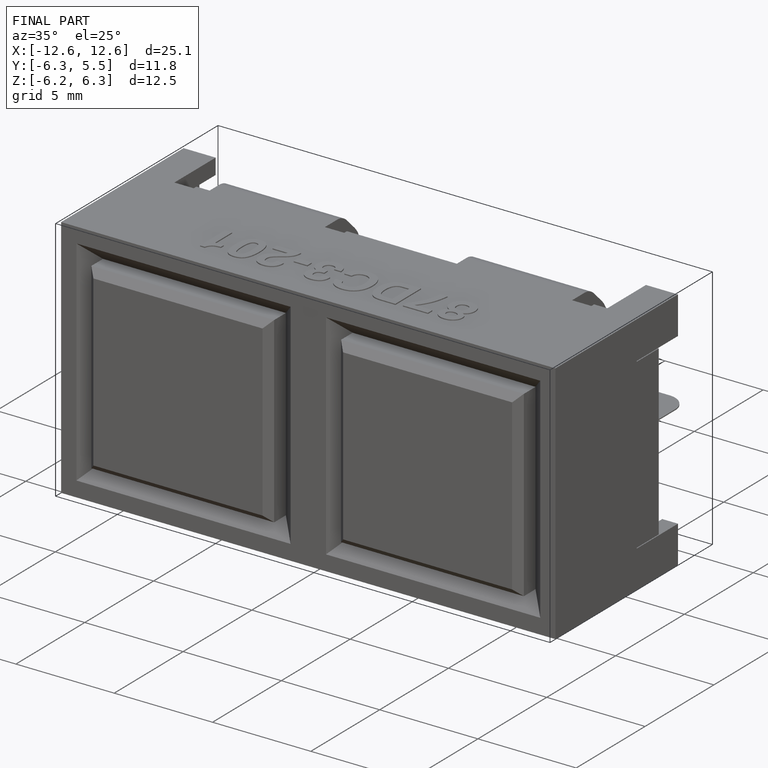
[diagram: finished part — iso view with bounding-box wireframe]
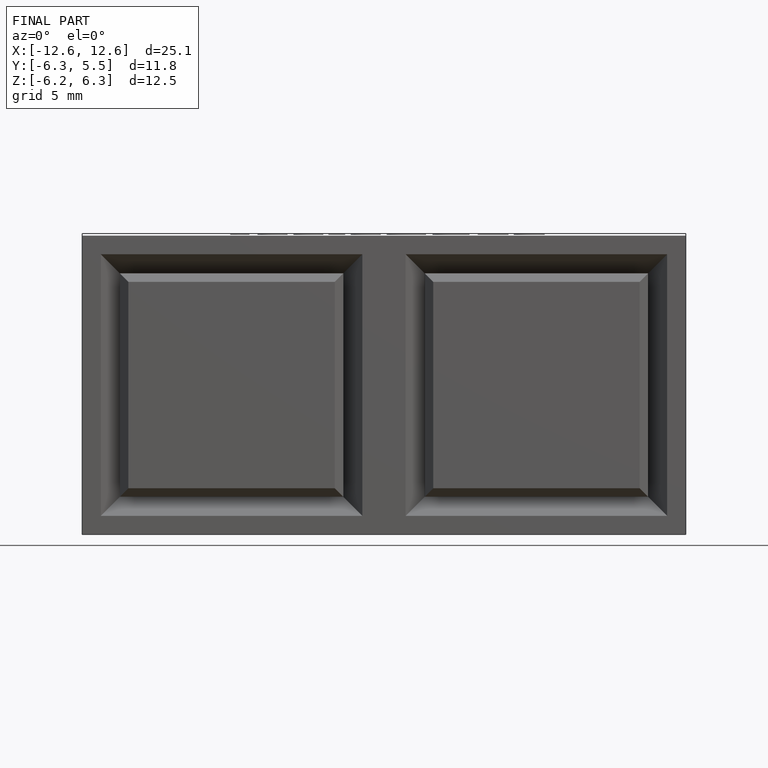
[diagram: finished part — front view with bounding-box wireframe]
